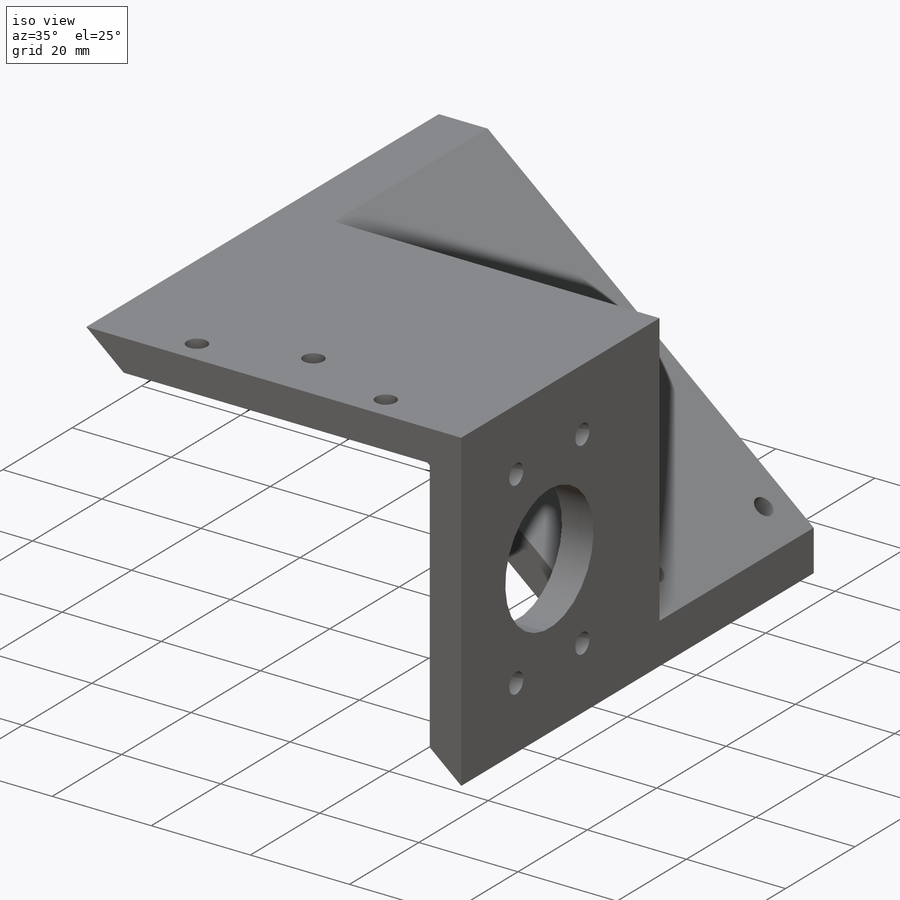
[diagram: iso view]
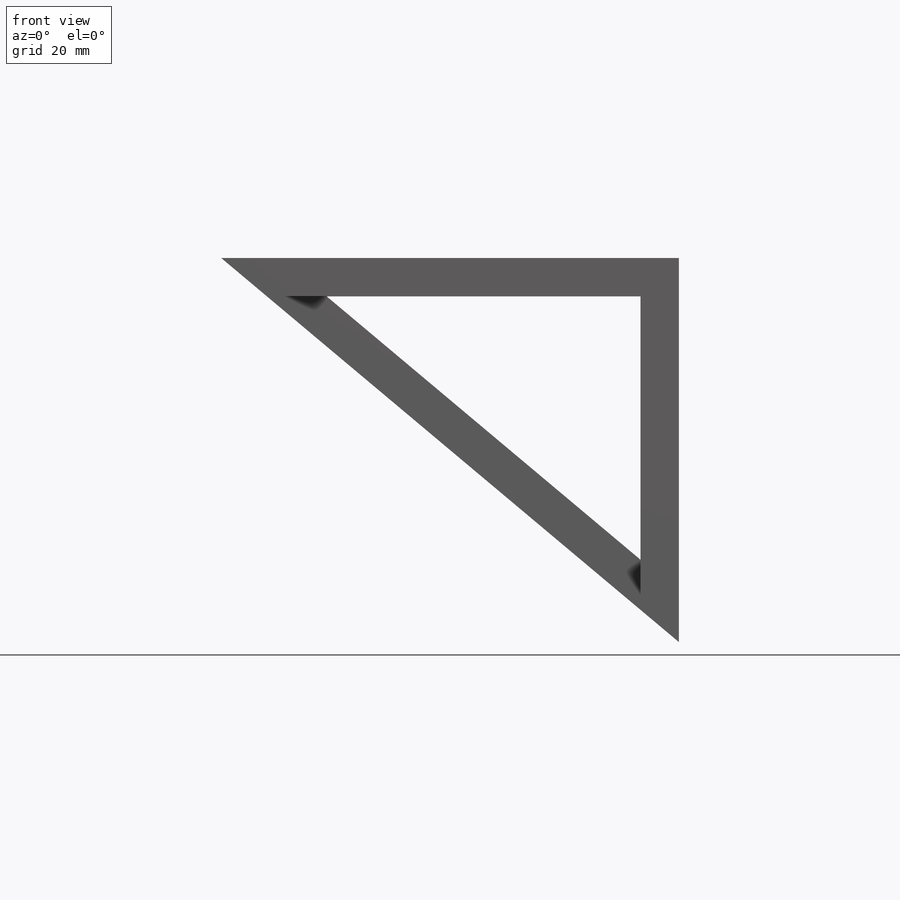
[diagram: front view]
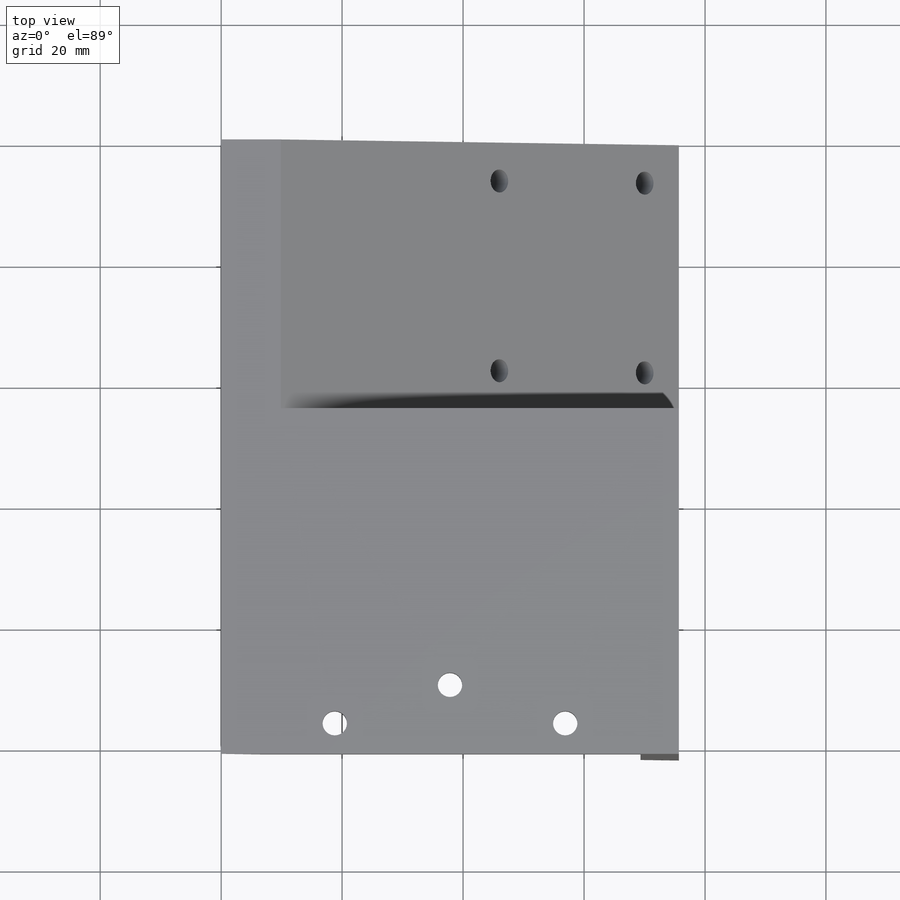
[diagram: top view]
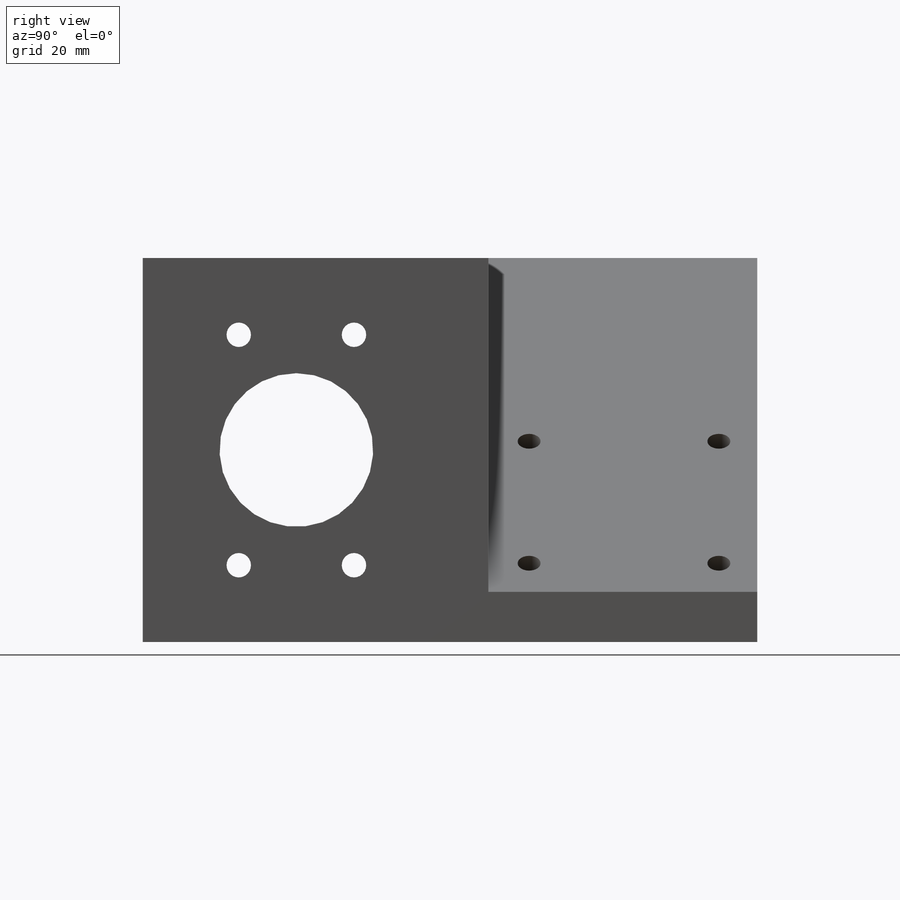
[diagram: right view]
SOLIDWORKS PART (.sldprt)
format: sldprt  version: not decoded by parser v0  size: 305,664 bytes
history: native  units: mm
features: sketch x11, thread x7, cut_extrude x4, hole x2, material x1, extrude x1 (+11 scaffold rows collapsed)
feature tree (37):
  scaffold x11  (default folders/planes/origin — collapsed)
  material  "Material <not specified>"
  sketch  "Sketch1"  dims[c1.D1=63.5mm c1.D2=~99.876995mm c2.D2=40.0deg c2.D3=6.35mm c2.D4=6.35mm c2.D5=6.35mm]
  extrude  "Boss-Extrude1"  Depth=101.6mm
  sketch  "Sketch3"  dims[D1=6.35mm D2=44.45mm]
  cut_extrude  "Cut-Extrude2"  Depth=6.35mm
  sketch  "Sketch4"  dims[D1=25.4mm D2=25.4mm D3=19.05mm D4=19.05mm D5=44.45mm D6=44.45mm]
  cut_extrude  "Cut-Extrude3"  [1 undecoded]
  sketch  "Sketch5"  dims[D1=38.1mm D2=19.05mm]
  hole  "#10-32 Tapped Hole1"  Diameter=4.0386mm Depth=6.35mm
  sketch  "3DSketch1"
  sketch  "Sketch6"  dims[hole-wizard template sketch: 61 standard entries collapsed; hole parameters above]
  thread  "Hole Thread1"  Diameter=4.826mm  [1 undecoded]
  thread  "Hole Thread2"  Diameter=4.826mm  [1 undecoded]
  thread  "Hole Thread3"  Diameter=4.826mm  [1 undecoded]
  thread  "Hole Thread4"  Diameter=4.826mm  [1 undecoded]
  sketch  "Sketch7"  dims[D1=38.1mm D2=5.08mm D3=6.35mm]
  hole  "#10-32 Tapped Hole2"  Diameter=4.0386mm Depth=6.35mm
  sketch  "Sketch9"
  sketch  "Sketch8"  dims[hole-wizard template sketch: 61 standard entries collapsed; hole parameters above]
  thread  "Hole Thread5"  Diameter=4.826mm  [1 undecoded]
  thread  "Hole Thread6"  Diameter=4.826mm  [1 undecoded]
  thread  "Hole Thread7"  Diameter=4.826mm  [1 undecoded]
  sketch  "Sketch10"
  cut_extrude  "Cut-Extrude4"  Depth=44.45mm
  sketch  "Sketch11"  dims[D4=3.81mm D1=31.369mm D2=12.7mm D3=6.35mm]
  cut_extrude  "Cut-Extrude5"  [1 undecoded]
decode coverage: 20 of 25 modeling features carry decoded parameters
note: ~ marks probable driven/reference dimensions
note: 9 parameter values undecoded
note: suppression state not decoded; provenance and decode notes live in map.json
